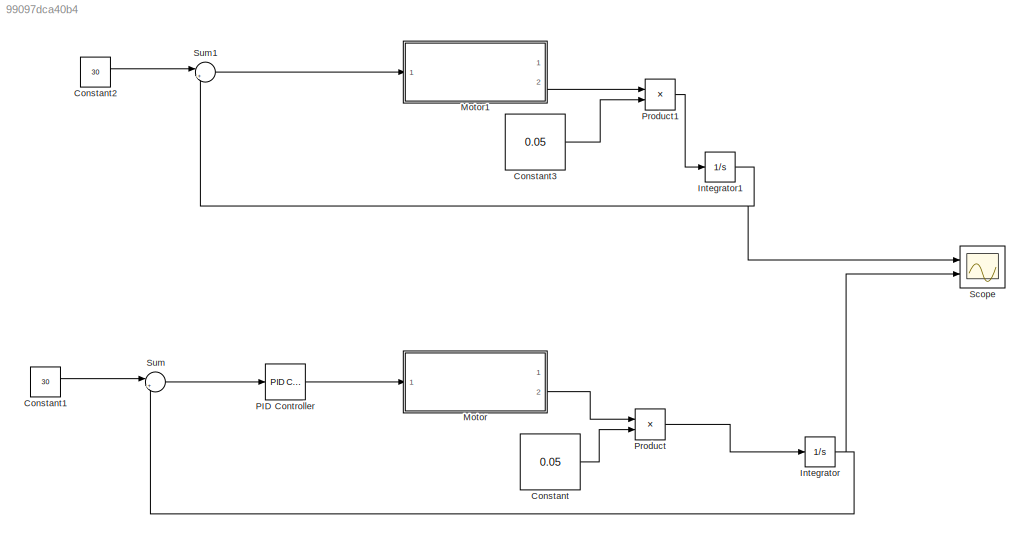
MODEL slx_99097dca40b4
KIND model
CONFIG AbsTol = auto
CONFIG EnableMultiTasking = off
CONFIG FixedStep = auto
CONFIG MaxStep = auto
CONFIG MinStep = auto
CONFIG RelTol = 1e-3
CONFIG SampleTimeConstraint = Unconstrained
CONFIG Solver = VariableStepAuto
CONFIG SolverName = VariableStepAuto
CONFIG StartTime = 0.0
CONFIG StopTime = 10.0
WORKSPACE source: mxarray member
WORKSPACE J: Simulink.Parameter (value not decoded)
BLOCK [Constant] Constant
  Value = 0.05
  VectorParams1D = off
BLOCK [Constant] Constant1
  Value = 30
BLOCK [Constant] Constant2
  Value = 30
BLOCK [Constant] Constant3
  Value = 0.05
  VectorParams1D = off
BLOCK [Integrator] Integrator
  Ports = [1, 1]
BLOCK [Integrator] Integrator1
  Ports = [1, 1]
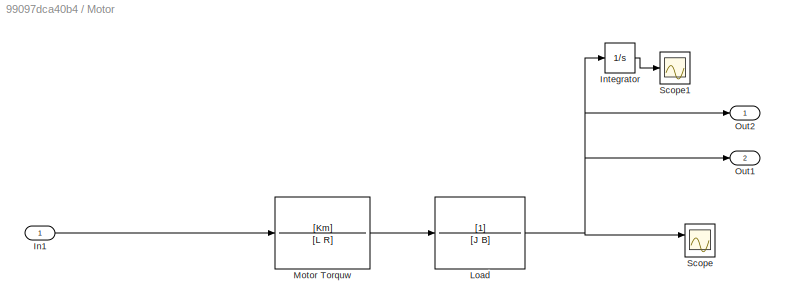
BLOCK [SubSystem] Motor
  Ports = [1, 2]
  RequestExecContextInheritance = off
BLOCK [Inport] Motor/In1
BLOCK [Integrator] Motor/Integrator
  Ports = [1, 1]
BLOCK [TransferFcn] Motor/Load
  Denominator = [J B]
BLOCK [TransferFcn] Motor/Motor Torquw
  Denominator = [L R]
  Numerator = [Km]
BLOCK [Outport] Motor/Out1
  Port = 2
BLOCK [Outport] Motor/Out2
BLOCK [Scope] Motor/Scope
  Floating = off
  NumInputPorts = 2
  Ports = [2]
  ScopeSpecificationString = Simulink.scopes.TimeScopeBlockCfg('CurrentConfiguration', extmgr.ConfigurationSet(extmgr.Configuration('Core','General UI',true),extmgr.Configuration('Core','Source UI',true),extmgr.Configuration('Sources','WiredSimulink',true),extmgr.Configuration('Visuals','Time Domain',true,'SerializedDisplays',{struct('MinYLimReal','-57.90606','MaxYLimReal','465.88029','YLabelReal','','MinYLimMag','0.00000','M...<+1375ch>
BLOCK [Scope] Motor/Scope1
  Floating = off
  NumInputPorts = 1
  Ports = [1]
  ScopeSpecificationString = Simulink.scopes.TimeScopeBlockCfg('CurrentConfiguration', extmgr.ConfigurationSet(extmgr.Configuration('Core','General UI',true),extmgr.Configuration('Core','Source UI',true),extmgr.Configuration('Sources','WiredSimulink',true,'DataLoggingVariableName','ScopeData1'),extmgr.Configuration('Visuals','Time Domain',true,'SerializedDisplays',{struct('MinYLimReal','-74.72476','MaxYLimReal','672.52283','Y...<+1408ch>
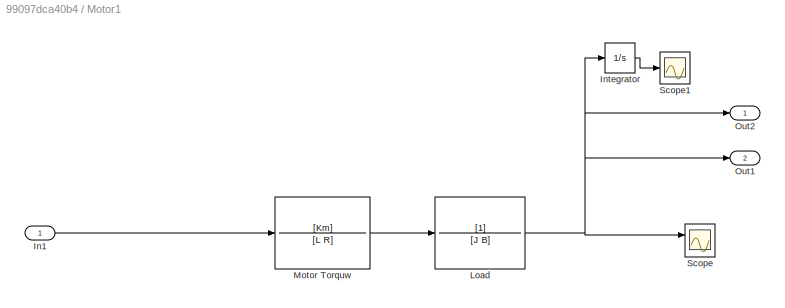
BLOCK [SubSystem] Motor1
  Ports = [1, 2]
  RequestExecContextInheritance = off
BLOCK [Inport] Motor1/In1
BLOCK [Integrator] Motor1/Integrator
  Ports = [1, 1]
BLOCK [TransferFcn] Motor1/Load
  Denominator = [J B]
BLOCK [TransferFcn] Motor1/Motor Torquw
  Denominator = [L R]
  Numerator = [Km]
BLOCK [Outport] Motor1/Out1
  Port = 2
BLOCK [Outport] Motor1/Out2
BLOCK [Scope] Motor1/Scope
  Floating = off
  NumInputPorts = 2
  Ports = [2]
  ScopeSpecificationString = Simulink.scopes.TimeScopeBlockCfg('CurrentConfiguration', extmgr.ConfigurationSet(extmgr.Configuration('Core','General UI',true),extmgr.Configuration('Core','Source UI',true),extmgr.Configuration('Sources','WiredSimulink',true),extmgr.Configuration('Visuals','Time Domain',true,'SerializedDisplays',{struct('MinYLimReal','-57.90606','MaxYLimReal','465.88029','YLabelReal','','MinYLimMag','0.00000','M...<+1375ch>
BLOCK [Scope] Motor1/Scope1
  Floating = off
  NumInputPorts = 1
  Ports = [1]
  ScopeSpecificationString = Simulink.scopes.TimeScopeBlockCfg('CurrentConfiguration', extmgr.ConfigurationSet(extmgr.Configuration('Core','General UI',true),extmgr.Configuration('Core','Source UI',true),extmgr.Configuration('Sources','WiredSimulink',true,'DataLoggingVariableName','ScopeData1'),extmgr.Configuration('Visuals','Time Domain',true,'SerializedDisplays',{struct('MinYLimReal','-74.72476','MaxYLimReal','672.52283','Y...<+1408ch>
BLOCK [Reference] PID Controller  REF=simulink/Continuous/PID Controller
  Ports = [1, 1]
  SourceBlock = simulink/Continuous/PID Controller
  SourceProductBaseCode = SL
  SourceType = PID 1dof
BLOCK [Product] Product
  Ports = [2, 1]
BLOCK [Product] Product1
  Ports = [2, 1]
BLOCK [Scope] Scope
  Floating = off
  NumInputPorts = 2
  Ports = [2]
  ScopeSpecificationString = Simulink.scopes.TimeScopeBlockCfg('CurrentConfiguration', extmgr.ConfigurationSet(extmgr.Configuration('Core','General UI',true),extmgr.Configuration('Core','Source UI',true),extmgr.Configuration('Sources','WiredSimulink',true,'DataLoggingVariableName','ScopeData2'),extmgr.Configuration('Visuals','Time Domain',true,'SerializedDisplays',{struct('MinYLimReal','-3.80007','MaxYLimReal','34.20059','YLa...<+1416ch>
BLOCK [Sum] Sum
  Inputs = |+-
  Ports = [2, 1]
BLOCK [Sum] Sum1
  Inputs = |+-
  Ports = [2, 1]
LINE Constant1:1 -> Sum:1
LINE Constant2:1 -> Sum1:1
LINE Constant3:1 -> Product1:2
LINE Constant:1 -> Product:2
NET Integrator1:1 -> Scope:1, Sum1:2
NET Integrator:1 -> Scope:2, Sum:2
LINE Motor/In1:1 -> Motor/Motor Torquw:1
LINE Motor/Integrator:1 -> Motor/Scope1:1
NET Motor/Load:1 -> Motor/Integrator:1, Motor/Out1:1, Motor/Out2:1, Motor/Scope:1
LINE Motor/Motor Torquw:1 -> Motor/Load:1
LINE Motor1/In1:1 -> Motor1/Motor Torquw:1
LINE Motor1/Integrator:1 -> Motor1/Scope1:1
NET Motor1/Load:1 -> Motor1/Integrator:1, Motor1/Out1:1, Motor1/Out2:1, Motor1/Scope:1
LINE Motor1/Motor Torquw:1 -> Motor1/Load:1
LINE Motor1:2 -> Product1:1
LINE Motor:2 -> Product:1
LINE PID Controller:1 -> Motor:1
LINE Product1:1 -> Integrator1:1
LINE Product:1 -> Integrator:1
LINE Sum1:1 -> Motor1:1
LINE Sum:1 -> PID Controller:1
note: NET lines group one-source signal fan-out (src -> all destinations, sorted); 1:1 wires keep LINE
